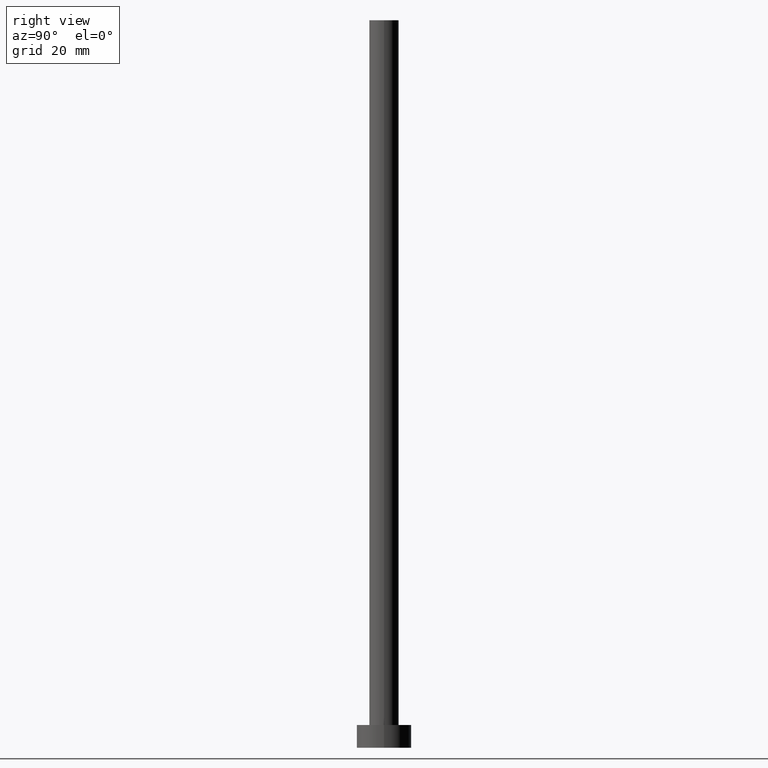
[diagram: clean part render]
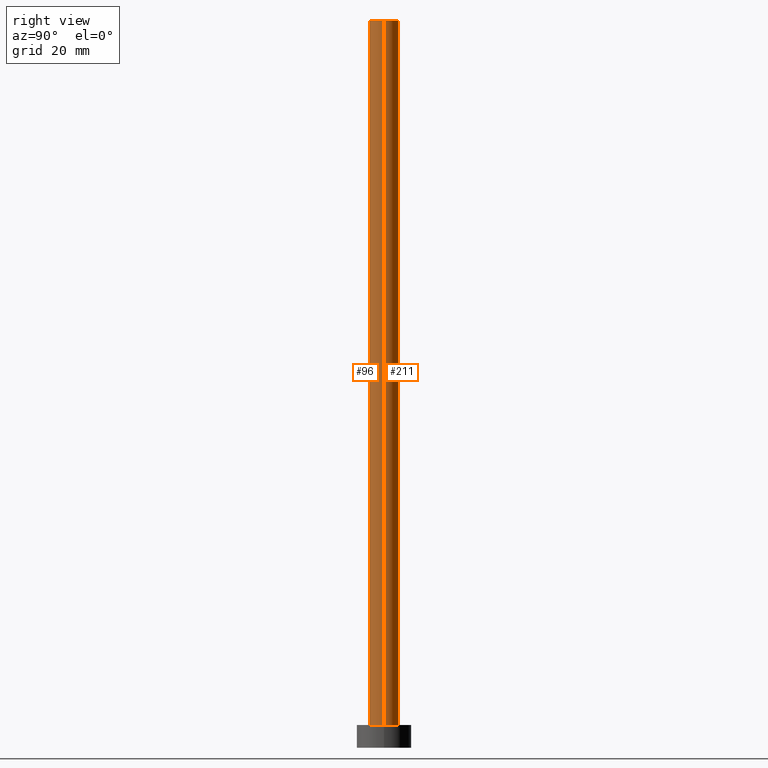
[diagram: same view with one multi-face feature highlighted, each face labeled with its STEP entity id]
A machine part, right view. The highlighted faces form ONE feature: a constant-radius fillet chain: 2 tangent blend faces with common blend radius 3.25 mm. The faces share edges in the B-rep.
Their STEP definitions:
[1] entity #211 (Cylinder):
#3 = CARTESIAN_POINT ( 'NONE',  ( 3.250000000000000444, 3.980102097228898231E-16, 5.000000000000000000 ) ) ;
#11 = CARTESIAN_POINT ( 'NONE',  ( 0.000000000000000000, 0.000000000000000000, 160.0000000000000000 ) ) ;
#13 = CARTESIAN_POINT ( 'NONE',  ( -3.250000000000000444, 0.000000000000000000, 160.0000000000000000 ) ) ;
#19 = VERTEX_POINT ( 'NONE', #106 ) ;
#33 = CARTESIAN_POINT ( 'NONE',  ( -3.250000000000000444, 0.000000000000000000, 5.000000000000000000 ) ) ;
#53 = LINE ( 'NONE', #255, #98 ) ;
#54 = EDGE_CURVE ( 'NONE', #19, #193, #164, .T. ) ;
#57 = EDGE_CURVE ( 'NONE', #19, #112, #221, .T. ) ;
#59 = CARTESIAN_POINT ( 'NONE',  ( 0.000000000000000000, 0.000000000000000000, 160.0000000000000000 ) ) ;
#64 = VECTOR ( 'NONE', #188, 1000.000000000000000 ) ;
#73 = DIRECTION ( 'NONE',  ( -0.000000000000000000, -0.000000000000000000, -1.000000000000000000 ) ) ;
#82 = CIRCLE ( 'NONE', #160, 3.250000000000000444 ) ;
#90 = DIRECTION ( 'NONE',  ( -0.000000000000000000, -0.000000000000000000, -1.000000000000000000 ) ) ;
#98 = VECTOR ( 'NONE', #73, 1000.000000000000000 ) ;
#106 = CARTESIAN_POINT ( 'NONE',  ( 3.250000000000000444, 3.980102097228898231E-16, 160.0000000000000000 ) ) ;
#110 = DIRECTION ( 'NONE',  ( -1.000000000000000000, 0.000000000000000000, 0.000000000000000000 ) ) ;
#112 = VERTEX_POINT ( 'NONE', #13 ) ;
#116 = ORIENTED_EDGE ( 'NONE', *, *, #236, .T. ) ;
#134 = DIRECTION ( 'NONE',  ( 1.000000000000000000, 0.000000000000000000, 0.000000000000000000 ) ) ;
#151 = FACE_OUTER_BOUND ( 'NONE', #176, .T. ) ;
#152 = CARTESIAN_POINT ( 'NONE',  ( 0.000000000000000000, 0.000000000000000000, 5.000000000000000000 ) ) ;
#158 = ORIENTED_EDGE ( 'NONE', *, *, #202, .F. ) ;
#160 = AXIS2_PLACEMENT_3D ( 'NONE', #152, #242, #222 ) ;
#164 = LINE ( 'NONE', #248, #64 ) ;
#176 = EDGE_LOOP ( 'NONE', ( #191, #203, #116, #158 ) ) ;
#188 = DIRECTION ( 'NONE',  ( -0.000000000000000000, -0.000000000000000000, -1.000000000000000000 ) ) ;
#191 = ORIENTED_EDGE ( 'NONE', *, *, #57, .F. ) ;
#192 = DIRECTION ( 'NONE',  ( 0.000000000000000000, 0.000000000000000000, 1.000000000000000000 ) ) ;
#193 = VERTEX_POINT ( 'NONE', #3 ) ;
#198 = VERTEX_POINT ( 'NONE', #33 ) ;
#202 = EDGE_CURVE ( 'NONE', #112, #198, #53, .T. ) ;
#203 = ORIENTED_EDGE ( 'NONE', *, *, #54, .T. ) ;
#211 = ADVANCED_FACE ( 'NONE', ( #151 ), #239, .T. ) ;
#221 = CIRCLE ( 'NONE', #238, 3.250000000000000444 ) ;
#222 = DIRECTION ( 'NONE',  ( 1.000000000000000000, 0.000000000000000000, 0.000000000000000000 ) ) ;
#236 = EDGE_CURVE ( 'NONE', #193, #198, #82, .T. ) ;
#238 = AXIS2_PLACEMENT_3D ( 'NONE', #11, #192, #134 ) ;
#239 = CYLINDRICAL_SURFACE ( 'NONE', #254, 3.250000000000000444 ) ;
#242 = DIRECTION ( 'NONE',  ( 0.000000000000000000, 0.000000000000000000, 1.000000000000000000 ) ) ;
#248 = CARTESIAN_POINT ( 'NONE',  ( 3.250000000000000444, 3.980102097228898231E-16, 160.0000000000000000 ) ) ;
#254 = AXIS2_PLACEMENT_3D ( 'NONE', #59, #90, #110 ) ;
#255 = CARTESIAN_POINT ( 'NONE',  ( -3.250000000000000444, 0.000000000000000000, 160.0000000000000000 ) ) ;
[2] entity #96 (Cylinder):
#3 = CARTESIAN_POINT ( 'NONE',  ( 3.250000000000000444, 3.980102097228898231E-16, 5.000000000000000000 ) ) ;
#13 = CARTESIAN_POINT ( 'NONE',  ( -3.250000000000000444, 0.000000000000000000, 160.0000000000000000 ) ) ;
#18 = EDGE_CURVE ( 'NONE', #112, #19, #246, .T. ) ;
#19 = VERTEX_POINT ( 'NONE', #106 ) ;
#31 = AXIS2_PLACEMENT_3D ( 'NONE', #94, #120, #179 ) ;
#33 = CARTESIAN_POINT ( 'NONE',  ( -3.250000000000000444, 0.000000000000000000, 5.000000000000000000 ) ) ;
#34 = DIRECTION ( 'NONE',  ( 0.000000000000000000, 0.000000000000000000, 1.000000000000000000 ) ) ;
#36 = DIRECTION ( 'NONE',  ( 1.000000000000000000, 0.000000000000000000, 0.000000000000000000 ) ) ;
#42 = DIRECTION ( 'NONE',  ( -0.000000000000000000, -0.000000000000000000, -1.000000000000000000 ) ) ;
#53 = LINE ( 'NONE', #255, #98 ) ;
#54 = EDGE_CURVE ( 'NONE', #19, #193, #164, .T. ) ;
#64 = VECTOR ( 'NONE', #188, 1000.000000000000000 ) ;
#73 = DIRECTION ( 'NONE',  ( -0.000000000000000000, -0.000000000000000000, -1.000000000000000000 ) ) ;
#83 = ORIENTED_EDGE ( 'NONE', *, *, #202, .T. ) ;
#94 = CARTESIAN_POINT ( 'NONE',  ( 0.000000000000000000, 0.000000000000000000, 5.000000000000000000 ) ) ;
#95 = AXIS2_PLACEMENT_3D ( 'NONE', #215, #42, #214 ) ;
#96 = ADVANCED_FACE ( 'NONE', ( #115 ), #147, .T. ) ;
#98 = VECTOR ( 'NONE', #73, 1000.000000000000000 ) ;
#106 = CARTESIAN_POINT ( 'NONE',  ( 3.250000000000000444, 3.980102097228898231E-16, 160.0000000000000000 ) ) ;
#112 = VERTEX_POINT ( 'NONE', #13 ) ;
#115 = FACE_OUTER_BOUND ( 'NONE', #235, .T. ) ;
#120 = DIRECTION ( 'NONE',  ( 0.000000000000000000, 0.000000000000000000, 1.000000000000000000 ) ) ;
#127 = CARTESIAN_POINT ( 'NONE',  ( 0.000000000000000000, 0.000000000000000000, 160.0000000000000000 ) ) ;
#147 = CYLINDRICAL_SURFACE ( 'NONE', #95, 3.250000000000000444 ) ;
#153 = ORIENTED_EDGE ( 'NONE', *, *, #166, .T. ) ;
#164 = LINE ( 'NONE', #248, #64 ) ;
#166 = EDGE_CURVE ( 'NONE', #198, #193, #252, .T. ) ;
#178 = ORIENTED_EDGE ( 'NONE', *, *, #18, .F. ) ;
#179 = DIRECTION ( 'NONE',  ( 1.000000000000000000, 0.000000000000000000, 0.000000000000000000 ) ) ;
#188 = DIRECTION ( 'NONE',  ( -0.000000000000000000, -0.000000000000000000, -1.000000000000000000 ) ) ;
#193 = VERTEX_POINT ( 'NONE', #3 ) ;
#198 = VERTEX_POINT ( 'NONE', #33 ) ;
#202 = EDGE_CURVE ( 'NONE', #112, #198, #53, .T. ) ;
#214 = DIRECTION ( 'NONE',  ( -1.000000000000000000, 0.000000000000000000, 0.000000000000000000 ) ) ;
#215 = CARTESIAN_POINT ( 'NONE',  ( 0.000000000000000000, 0.000000000000000000, 160.0000000000000000 ) ) ;
#220 = ORIENTED_EDGE ( 'NONE', *, *, #54, .F. ) ;
#226 = AXIS2_PLACEMENT_3D ( 'NONE', #127, #34, #36 ) ;
#235 = EDGE_LOOP ( 'NONE', ( #220, #178, #83, #153 ) ) ;
#246 = CIRCLE ( 'NONE', #226, 3.250000000000000444 ) ;
#248 = CARTESIAN_POINT ( 'NONE',  ( 3.250000000000000444, 3.980102097228898231E-16, 160.0000000000000000 ) ) ;
#252 = CIRCLE ( 'NONE', #31, 3.250000000000000444 ) ;
#255 = CARTESIAN_POINT ( 'NONE',  ( -3.250000000000000444, 0.000000000000000000, 160.0000000000000000 ) ) ;